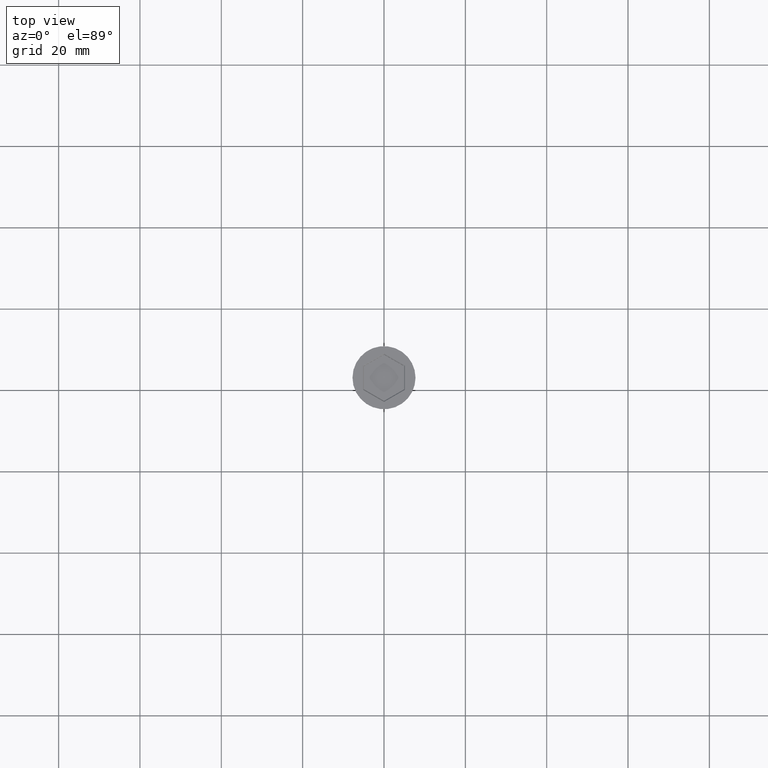
[diagram: clean part render]
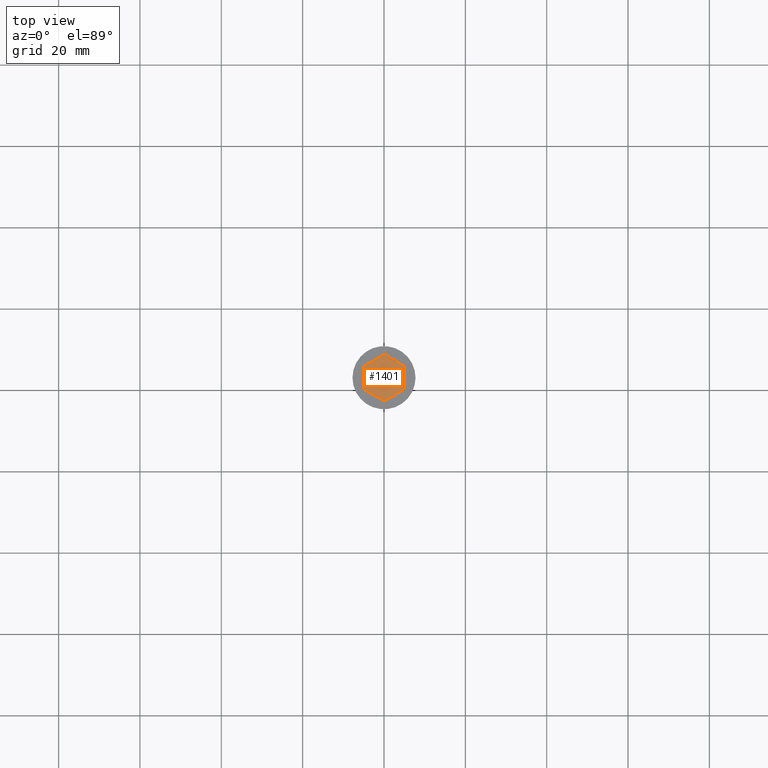
[diagram: same view with one face highlighted and labeled with its STEP entity id]
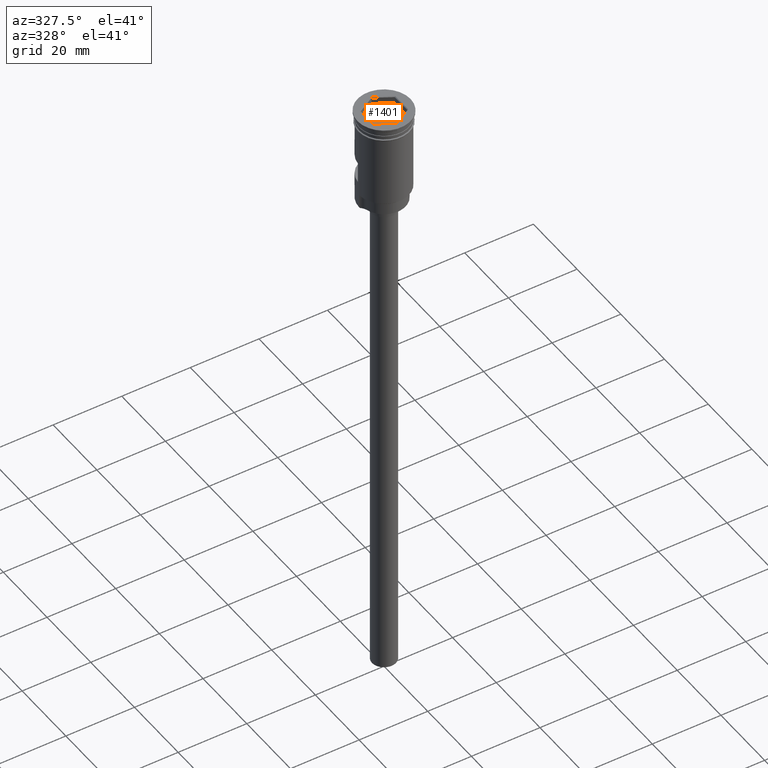
[diagram: same view with one face highlighted and labeled with its STEP entity id]
A machine part, top view. The second image highlights one B-rep face of the part: STEP entity #1401.
A second angle (auxiliary view) of the same face is appended — the face is thin or edge-on in the first view.
In plain terms, the highlighted planar face has unit normal (-0, 0, 1).
Its self-contained STEP definition (entity closure, byte-faithful):
#48 = DIRECTION ( 'NONE',  ( -0.8660254037844385966, -0.4999999999999999445, 0.000000000000000000 ) ) ;
#52 = LINE ( 'NONE', #1179, #392 ) ;
#58 = LINE ( 'NONE', #550, #217 ) ;
#77 = EDGE_CURVE ( 'NONE', #136, #1221, #52, .T. ) ;
#90 = ORIENTED_EDGE ( 'NONE', *, *, #1011, .T. ) ;
#136 = VERTEX_POINT ( 'NONE', #1406 ) ;
#188 = CARTESIAN_POINT ( 'NONE',  ( 4.949999999999998401, -2.857883832488648412, -2.000000000000000000 ) ) ;
#202 = LINE ( 'NONE', #188, #1023 ) ;
#217 = VECTOR ( 'NONE', #1399, 1000.000000000000000 ) ;
#220 = VERTEX_POINT ( 'NONE', #703 ) ;
#343 = ORIENTED_EDGE ( 'NONE', *, *, #619, .T. ) ;
#367 = CARTESIAN_POINT ( 'NONE',  ( 4.949999999999999289, 2.857883832488647968, -2.000000000000000000 ) ) ;
#387 = CARTESIAN_POINT ( 'NONE',  ( 4.949999999999999289, 2.857883832488647968, -2.000000000000000000 ) ) ;
#392 = VECTOR ( 'NONE', #536, 1000.000000000000114 ) ;
#442 = DIRECTION ( 'NONE',  ( 1.000000000000000000, 0.000000000000000000, 0.000000000000000000 ) ) ;
#443 = LINE ( 'NONE', #1440, #1598 ) ;
#469 = VERTEX_POINT ( 'NONE', #387 ) ;
#493 = VERTEX_POINT ( 'NONE', #785 ) ;
#536 = DIRECTION ( 'NONE',  ( 0.8660254037844385966, -0.5000000000000001110, 0.000000000000000000 ) ) ;
#537 = DIRECTION ( 'NONE',  ( -0.000000000000000000, 0.000000000000000000, 1.000000000000000000 ) ) ;
#550 = CARTESIAN_POINT ( 'NONE',  ( -4.949999999999999289, 2.857883832488647524, -2.000000000000000000 ) ) ;
#619 = EDGE_CURVE ( 'NONE', #220, #136, #58, .T. ) ;
#664 = VECTOR ( 'NONE', #1587, 1000.000000000000000 ) ;
#674 = ORIENTED_EDGE ( 'NONE', *, *, #685, .T. ) ;
#685 = EDGE_CURVE ( 'NONE', #469, #1166, #1057, .T. ) ;
#703 = CARTESIAN_POINT ( 'NONE',  ( -4.949999999999999289, 2.857883832488647524, -2.000000000000000000 ) ) ;
#721 = VECTOR ( 'NONE', #1313, 1000.000000000000000 ) ;
#776 = AXIS2_PLACEMENT_3D ( 'NONE', #1060, #537, #442 ) ;
#785 = CARTESIAN_POINT ( 'NONE',  ( 4.949999999999998401, -2.857883832488648412, -2.000000000000000000 ) ) ;
#804 = DIRECTION ( 'NONE',  ( 1.517489493673898021E-16, 1.000000000000000000, 0.000000000000000000 ) ) ;
#846 = CARTESIAN_POINT ( 'NONE',  ( -4.336808689942017736E-16, -5.715767664977295937, -2.000000000000000000 ) ) ;
#991 = CARTESIAN_POINT ( 'NONE',  ( -4.336808689942017736E-16, -5.715767664977295937, -2.000000000000000000 ) ) ;
#1011 = EDGE_CURVE ( 'NONE', #1166, #220, #443, .T. ) ;
#1023 = VECTOR ( 'NONE', #804, 1000.000000000000000 ) ;
#1056 = ORIENTED_EDGE ( 'NONE', *, *, #77, .T. ) ;
#1057 = LINE ( 'NONE', #367, #721 ) ;
#1060 = CARTESIAN_POINT ( 'NONE',  ( 0.000000000000000000, 0.000000000000000000, -2.000000000000000000 ) ) ;
#1089 = EDGE_CURVE ( 'NONE', #1221, #493, #1237, .T. ) ;
#1166 = VERTEX_POINT ( 'NONE', #1332 ) ;
#1179 = CARTESIAN_POINT ( 'NONE',  ( -4.949999999999999289, -2.857883832488647968, -2.000000000000000000 ) ) ;
#1221 = VERTEX_POINT ( 'NONE', #991 ) ;
#1237 = LINE ( 'NONE', #846, #664 ) ;
#1301 = FACE_OUTER_BOUND ( 'NONE', #1564, .T. ) ;
#1313 = DIRECTION ( 'NONE',  ( -0.8660254037844387076, 0.4999999999999999445, 0.000000000000000000 ) ) ;
#1332 = CARTESIAN_POINT ( 'NONE',  ( 4.336808689942017736E-16, 5.715767664977295048, -2.000000000000000000 ) ) ;
#1333 = ORIENTED_EDGE ( 'NONE', *, *, #1089, .T. ) ;
#1399 = DIRECTION ( 'NONE',  ( 0.000000000000000000, -1.000000000000000000, 0.000000000000000000 ) ) ;
#1401 = ADVANCED_FACE ( 'NONE', ( #1301 ), #1416, .T. ) ;
#1406 = CARTESIAN_POINT ( 'NONE',  ( -4.949999999999999289, -2.857883832488647968, -2.000000000000000000 ) ) ;
#1412 = EDGE_CURVE ( 'NONE', #493, #469, #202, .T. ) ;
#1416 = PLANE ( 'NONE',  #776 ) ;
#1440 = CARTESIAN_POINT ( 'NONE',  ( 4.336808689942017736E-16, 5.715767664977295048, -2.000000000000000000 ) ) ;
#1491 = ORIENTED_EDGE ( 'NONE', *, *, #1412, .T. ) ;
#1564 = EDGE_LOOP ( 'NONE', ( #674, #90, #343, #1056, #1333, #1491 ) ) ;
#1587 = DIRECTION ( 'NONE',  ( 0.8660254037844387076, 0.4999999999999999445, 0.000000000000000000 ) ) ;
#1598 = VECTOR ( 'NONE', #48, 1000.000000000000114 ) ;